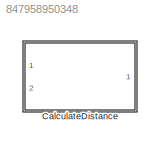
MODEL slx_847958950348
KIND library
CONFIG AbsTol = auto
CONFIG EnableMultiTasking = off
CONFIG FixedStep = auto
CONFIG MaxStep = auto
CONFIG MinStep = auto
CONFIG RelTol = 1e-3
CONFIG SampleTimeConstraint = Unconstrained
CONFIG Solver = VariableStepAuto
CONFIG SolverName = VariableStepAuto
CONFIG StartTime = 0.0
CONFIG StopTime = 10.0
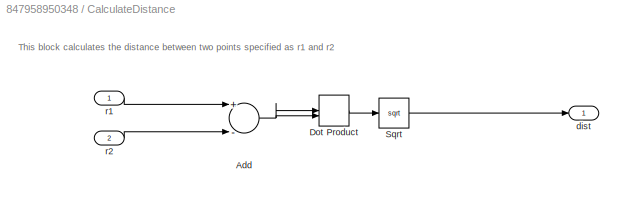
BLOCK [SubSystem] CalculateDistance
  Ports = [2, 1]
  RequestExecContextInheritance = off
BLOCK [Sum] CalculateDistance/Add
  InputSameDT = off
  Inputs = +-
  OutDataTypeStr = Inherit: Inherit via internal rule
  Ports = [2, 1]
  SaturateOnIntegerOverflow = off
BLOCK [DotProduct] CalculateDistance/Dot Product
  OutDataTypeStr = Inherit: Inherit via internal rule
BLOCK [Sqrt] CalculateDistance/Sqrt
BLOCK [Outport] CalculateDistance/dist
  IconDisplay = Port number
BLOCK [Inport] CalculateDistance/r1
  IconDisplay = Port number
BLOCK [Inport] CalculateDistance/r2
  IconDisplay = Port number
  Port = 2
ANNOTATION CalculateDistance: This block calculates the distance between two points specified as r1 and r2
NET CalculateDistance/Add:1 -> CalculateDistance/Dot Product:1, CalculateDistance/Dot Product:2
LINE CalculateDistance/Dot Product:1 -> CalculateDistance/Sqrt:1
LINE CalculateDistance/Sqrt:1 -> CalculateDistance/dist:1
LINE CalculateDistance/r1:1 -> CalculateDistance/Add:1
LINE CalculateDistance/r2:1 -> CalculateDistance/Add:2
note: NET lines group one-source signal fan-out (src -> all destinations, sorted); 1:1 wires keep LINE
